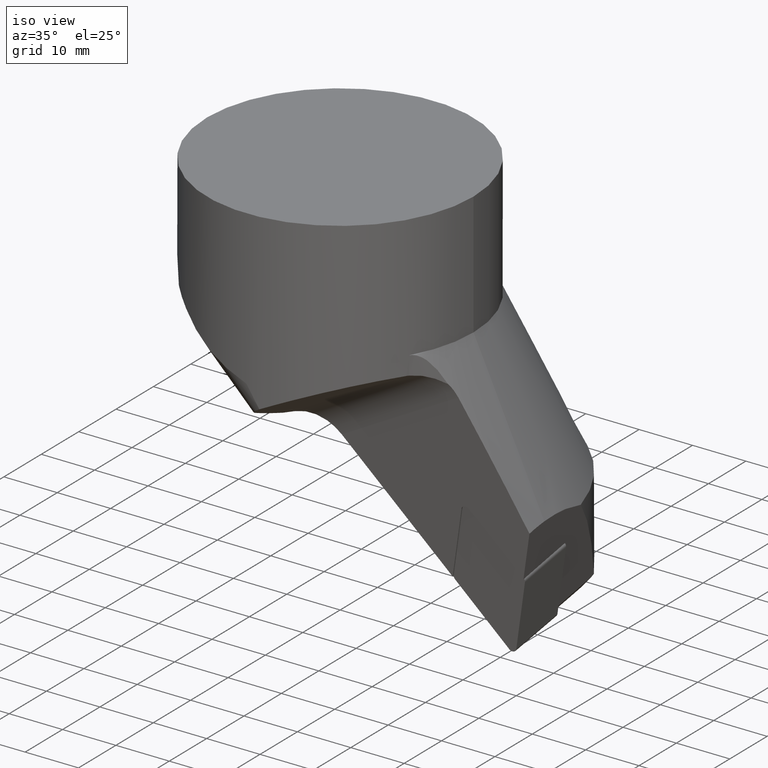
[diagram: clean part render]
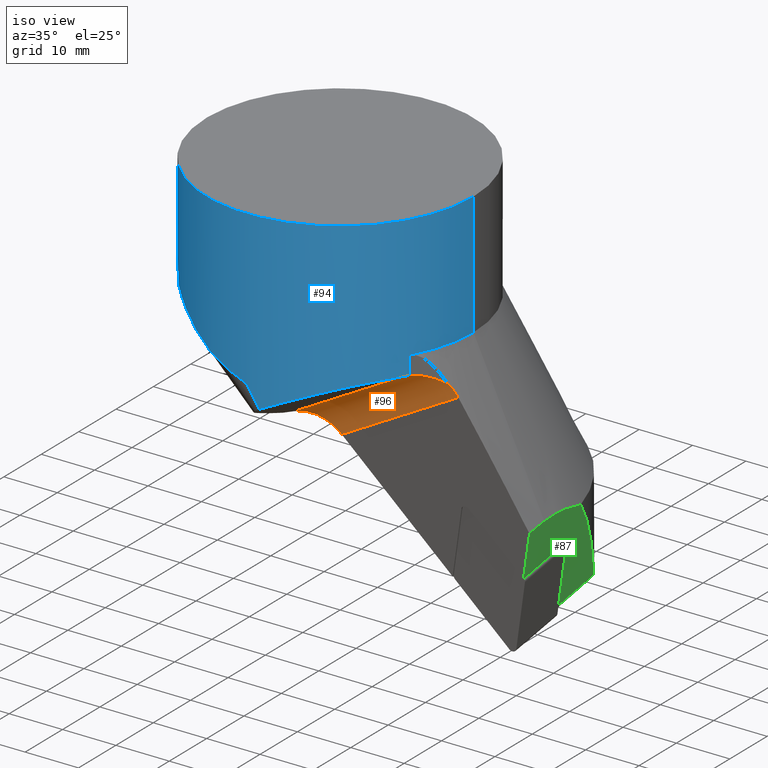
[diagram: same view with three faces highlighted in distinct colors, each labeled with its STEP entity id]
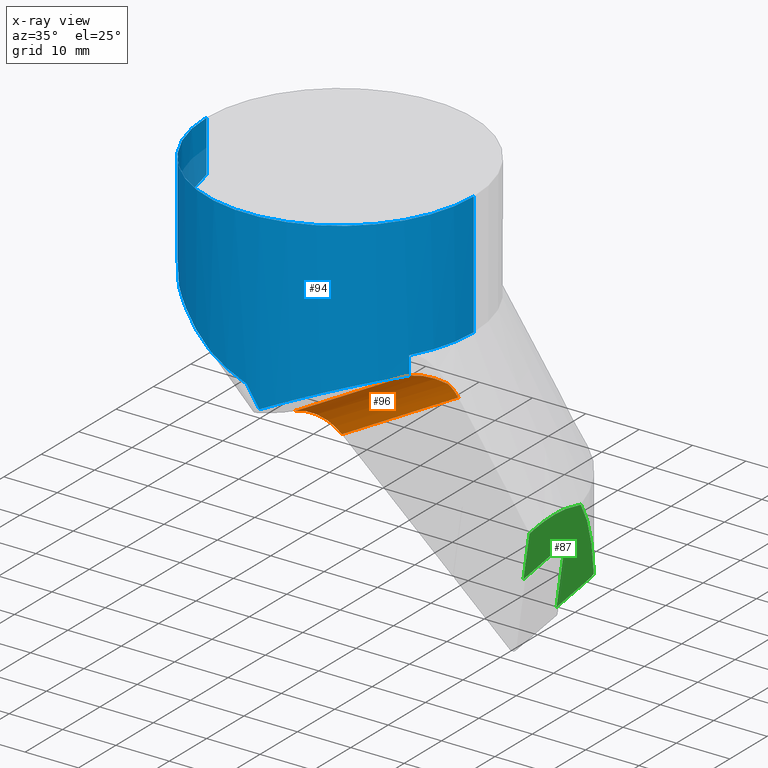
[diagram: x-ray of the same camera — body ghosted, the three highlighted faces saturated]
A machine part, iso view with three faces highlighted in distinct colors.
The next image is the same camera in x-ray (body ghosted, the three faces saturated) — at least one of them is partly hidden behind the body in this view.
Their STEP definitions:

[orange] entity #96 — the highlighted cylindrical surface (partial cylindrical patch) has radius 8 mm, axis along (-0.8663, 0.0776, -0.4935).
#96=ADVANCED_FACE('',(#148),#149,.F.);
#148=FACE_OUTER_BOUND('',#208,.T.);
#149=CYLINDRICAL_SURFACE('',#209,8.00000000000002);
#208=EDGE_LOOP('',(#412,#413,#414,#415,#416,#417));
#209=AXIS2_PLACEMENT_3D('',#418,#419,#420);
#412=ORIENTED_EDGE('',*,*,#527,.T.);
#413=ORIENTED_EDGE('',*,*,#555,.T.);
#414=ORIENTED_EDGE('',*,*,#551,.T.);
#415=ORIENTED_EDGE('',*,*,#556,.F.);
#416=ORIENTED_EDGE('',*,*,#537,.T.);
#417=ORIENTED_EDGE('',*,*,#557,.T.);
#418=CARTESIAN_POINT('',(23.7622692307713,-15.1402344104098,-33.8700730139728));
#419=DIRECTION('',(-0.866278708929212,0.0776257556945035,-0.493493100771221));
#420=DIRECTION('',(0.419616961756508,0.649107543236308,-0.634492712897447));
#527=EDGE_CURVE('',#643,#641,#644,.T.);
#537=EDGE_CURVE('',#660,#658,#661,.T.);
#551=EDGE_CURVE('',#684,#682,#685,.T.);
#555=EDGE_CURVE('',#641,#684,#690,.T.);
#556=EDGE_CURVE('',#660,#682,#691,.T.);
#557=EDGE_CURVE('',#658,#643,#692,.T.);
#641=VERTEX_POINT('',#853);
#643=VERTEX_POINT('',#866);
#644=B_SPLINE_CURVE_WITH_KNOTS('',3,(#867,#868,#869,#870,#871,#872,#873,#874),.UNSPECIFIED.,.F.,.F.,(4,2,2,4),(1.99357125253975,2.78534058154978,4.17801087232467,4.60069371737758),.UNSPECIFIED.);
#658=VERTEX_POINT('',#915);
#660=VERTEX_POINT('',#918);
#661=ELLIPSE('',#919,8.16797308076912,8.0);
#682=VERTEX_POINT('',#966);
#684=VERTEX_POINT('',#968);
#685=CIRCLE('',#969,6.16633100412016);
#690=B_SPLINE_CURVE_WITH_KNOTS('',3,(#996,#997,#998,#999,#1000,#1001,#1002,#1003,#1004,#1005,#1006,#1007),.UNSPECIFIED.,.F.,.F.,(4,2,2,2,2,4),(4.34603372209536,4.96071841316098,5.85285589566756,7.63662561550819,9.42039533534881,10.4865132481081),.UNSPECIFIED.);
#691=LINE('',#1008,#1009);
#692=LINE('',#1010,#1011);
#853=CARTESIAN_POINT('',(26.1108421119977,-8.4247807174747,-28.2247578916033));
#866=CARTESIAN_POINT('',(27.4547974824096,-7.57753475465468,-30.4656903169751));
#867=CARTESIAN_POINT('',(27.4547974824096,-7.57753475465468,-30.4656903169751));
#868=CARTESIAN_POINT('',(27.3251094417547,-7.6178795138613,-30.2206159807268));
#869=CARTESIAN_POINT('',(27.1923809799312,-7.67276543759421,-29.9781385762328));
#870=CARTESIAN_POINT('',(26.8207479171187,-7.86310809701971,-29.3242014864113));
#871=CARTESIAN_POINT('',(26.5773027261767,-8.02869321513341,-28.9236532081432));
#872=CARTESIAN_POINT('',(26.2590656621385,-8.29234228681221,-28.4409484963064));
#873=CARTESIAN_POINT('',(26.1849018831783,-8.35706273432858,-28.3313138968294));
#874=CARTESIAN_POINT('',(26.1108421119977,-8.4247807174747,-28.2247578916033));
#915=CARTESIAN_POINT('',(4.15598289399387,-5.48976776861457,-43.7383289458792));
#918=CARTESIAN_POINT('',(-0.745218798532441,-10.9540725261121,-39.0207886607072));
#919=AXIS2_PLACEMENT_3D('',#1117,#1118,#1119);
#966=CARTESIAN_POINT('',(21.3919321041843,-12.9377448131417,-26.4099151293403));
#968=CARTESIAN_POINT('',(21.6506350946111,-12.5,-26.4377996389401));
#969=AXIS2_PLACEMENT_3D('',#1149,#1150,#1151);
#996=CARTESIAN_POINT('',(26.1108421119977,-8.4247807174747,-28.2247578916033));
#997=CARTESIAN_POINT('',(25.9289765582159,-8.50894880790927,-28.1273818498521));
#998=CARTESIAN_POINT('',(25.7486761880857,-8.59908631195301,-28.0341675172989));
#999=CARTESIAN_POINT('',(25.3166585814445,-8.83154979107002,-27.8170089391383));
#1000=CARTESIAN_POINT('',(25.0694789343241,-8.97917533441311,-27.69820773742));
#1001=CARTESIAN_POINT('',(24.3736624233109,-9.43423900910255,-27.3751516242361));
#1002=CARTESIAN_POINT('',(23.9106964370092,-9.79310674932917,-27.1763155173989));
#1003=CARTESIAN_POINT('',(23.036625217395,-10.6120573006724,-26.8346512119303));
#1004=CARTESIAN_POINT('',(22.6255075512824,-11.0721540054011,-26.6918881254002));
#1005=CARTESIAN_POINT('',(22.03971709958,-11.8675692265399,-26.5231880287013));
#1006=CARTESIAN_POINT('',(21.836046292374,-12.1788583851825,-26.4732219135646));
#1007=CARTESIAN_POINT('',(21.6506350946111,-12.5,-26.4377996389401));
#1008=CARTESIAN_POINT('',(-0.745218798532441,-10.9540725261121,-39.0207886607072));
#1009=VECTOR('',#1156,25.5543056461355);
#1010=CARTESIAN_POINT('',(4.15598289399387,-5.48976776861457,-43.7383289458792));
#1011=VECTOR('',#1157,26.895287103633);
#1117=CARTESIAN_POINT('',(4.18129563867103,-13.3856168067985,-45.0247686961849));
#1118=DIRECTION('',(-0.747674819359016,0.104449876194447,-0.65579919781853));
#1119=DIRECTION('',(0.664057492248446,0.122304835725287,-0.737610448778293));
#1149=CARTESIAN_POINT('',(20.0517757963097,-12.2302700935833,-32.3871300864941));
#1150=DIRECTION('',(0.827664451915456,-0.504768527928607,-0.245316710087746));
#1151=DIRECTION('',(0.259288594341278,-0.0437423657984762,0.964808805038012));
#1156=DIRECTION('',(0.866278708929213,-0.077625755694504,0.49349310077122));
#1157=DIRECTION('',(0.866278708929212,-0.077625755694502,0.493493100771221));

[blue] entity #94 — the highlighted cylindrical surface (partial cylindrical patch) has radius 25 mm, axis along (-0, -0, 1).
#94=ADVANCED_FACE('',(#144),#145,.T.);
#144=FACE_OUTER_BOUND('',#204,.T.);
#145=CYLINDRICAL_SURFACE('',#205,25.0);
#204=EDGE_LOOP('',(#389,#390,#391,#392,#393,#394,#395,#396,#397,#398,#399));
#205=AXIS2_PLACEMENT_3D('',#400,#401,#402);
#389=ORIENTED_EDGE('',*,*,#529,.T.);
#390=ORIENTED_EDGE('',*,*,#546,.T.);
#391=ORIENTED_EDGE('',*,*,#532,.T.);
#392=ORIENTED_EDGE('',*,*,#540,.F.);
#393=ORIENTED_EDGE('',*,*,#547,.F.);
#394=ORIENTED_EDGE('',*,*,#548,.F.);
#395=ORIENTED_EDGE('',*,*,#549,.F.);
#396=ORIENTED_EDGE('',*,*,#550,.F.);
#397=ORIENTED_EDGE('',*,*,#551,.F.);
#398=ORIENTED_EDGE('',*,*,#552,.F.);
#399=ORIENTED_EDGE('',*,*,#525,.F.);
#400=CARTESIAN_POINT('',(-1.11022302462516E-015,1.77635683940025E-014,-26.0787791435518));
#401=DIRECTION('',(-0.0,-0.0,1.0));
#402=DIRECTION('',(-6.21724893790088E-016,1.0,0.0));
#525=EDGE_CURVE('',#637,#639,#640,.T.);
#529=EDGE_CURVE('',#637,#646,#647,.T.);
#532=EDGE_CURVE('',#652,#650,#653,.T.);
#540=EDGE_CURVE('',#664,#650,#666,.T.);
#546=EDGE_CURVE('',#646,#652,#675,.T.);
#547=EDGE_CURVE('',#676,#664,#677,.T.);
#548=EDGE_CURVE('',#678,#676,#679,.T.);
#549=EDGE_CURVE('',#680,#678,#681,.T.);
#550=EDGE_CURVE('',#682,#680,#683,.T.);
#551=EDGE_CURVE('',#684,#682,#685,.T.);
#552=EDGE_CURVE('',#639,#684,#686,.T.);
#637=VERTEX_POINT('',#848);
#639=VERTEX_POINT('',#851);
#640=CIRCLE('',#852,25.0);
#646=VERTEX_POINT('',#876);
#647=LINE('',#877,#878);
#650=VERTEX_POINT('',#881);
#652=VERTEX_POINT('',#883);
#653=LINE('',#884,#885);
#664=VERTEX_POINT('',#923);
#666=ELLIPSE('',#925,38.1214250995746,25.0);
#675=CIRCLE('',#935,25.0);
#676=VERTEX_POINT('',#936);
#677=B_SPLINE_CURVE_WITH_KNOTS('',3,(#937,#938,#939,#940,#941,#942,#943,#944,#945,#946,#947,#948),.UNSPECIFIED.,.F.,.F.,(4,2,2,2,2,4),(59.575412048818,59.7168087763301,62.6469278976111,65.5770470188922,68.5071661401733,68.6459225531929),.UNSPECIFIED.);
#678=VERTEX_POINT('',#949);
#679=B_SPLINE_CURVE_WITH_KNOTS('',3,(#950,#951,#952,#953,#954,#955,#956,#957,#958,#959,#960,#961,#962,#963),.UNSPECIFIED.,.F.,.F.,(4,2,2,2,2,2,4),(8.29895309466273E-014,2.15070872064106,4.30141744128212,6.45212616192318,8.60283488256424,10.7535436032053,12.3080953979299),.UNSPECIFIED.);
#680=VERTEX_POINT('',#964);
#681=CIRCLE('',#965,91.0170571207383);
#682=VERTEX_POINT('',#966);
#683=ELLIPSE('',#967,29.6690004900927,25.0);
#684=VERTEX_POINT('',#968);
#685=CIRCLE('',#969,6.16633100412016);
#686=LINE('',#970,#971);
#848=CARTESIAN_POINT('',(25.0000000000001,5.370216E-015,-23.0));
#851=CARTESIAN_POINT('',(21.6506350946111,-12.5,-22.9999999999999));
#852=AXIS2_PLACEMENT_3D('',#1098,#1099,#1100);
#876=CARTESIAN_POINT('',(25.0,5.370216E-015,0.0));
#877=CARTESIAN_POINT('',(25.0000000000001,5.370216E-015,-23.0));
#878=VECTOR('',#1104,23.0);
#881=CARTESIAN_POINT('',(-25.0,-4.557372E-016,-9.6233134324562));
#883=CARTESIAN_POINT('',(-25.0,-1.406057E-014,-1.136868E-013));
#884=CARTESIAN_POINT('',(-25.0,-1.406057E-014,-1.136868E-013));
#885=VECTOR('',#1111,9.62331343245609);
#923=CARTESIAN_POINT('',(-18.2283062811975,-17.1093205627475,-20.0687231177633));
#925=AXIS2_PLACEMENT_3D('',#1124,#1125,#1126);
#935=AXIS2_PLACEMENT_3D('',#1140,#1141,#1142);
#936=CARTESIAN_POINT('',(-11.4530711822711,-22.2222222222223,-23.7450152961981));
#937=CARTESIAN_POINT('',(-11.4530711822711,-22.2222222222223,-23.7450152961981));
#938=CARTESIAN_POINT('',(-11.4912536104722,-22.2025434491578,-23.7206404085781));
#939=CARTESIAN_POINT('',(-11.5294131283249,-22.1827519350107,-23.6963446807184));
#940=CARTESIAN_POINT('',(-12.3578181923216,-21.7503789845984,-23.170303449822));
#941=CARTESIAN_POINT('',(-13.137781829134,-21.2892885577255,-22.7028199747018));
#942=CARTESIAN_POINT('',(-14.6570559728239,-20.2732786339537,-21.8401377266629));
#943=CARTESIAN_POINT('',(-15.3964907513262,-19.7182403650805,-21.4448156284099));
#944=CARTESIAN_POINT('',(-16.8157854324828,-18.5226966404115,-20.7252667522724));
#945=CARTESIAN_POINT('',(-17.4956164203488,-17.8821876823785,-20.4009887608274));
#946=CARTESIAN_POINT('',(-18.1676579745447,-17.1737635066628,-20.0961290343795));
#947=CARTESIAN_POINT('',(-18.1980032835952,-17.1416054404261,-20.0823989175732));
#948=CARTESIAN_POINT('',(-18.2283062811975,-17.1093205627475,-20.0687231177633));
#949=CARTESIAN_POINT('',(1.350031E-013,-25.0,-28.8637785612519));
#950=CARTESIAN_POINT('',(1.207923E-013,-25.0,-28.8637785612519));
#951=CARTESIAN_POINT('',(-0.67289204818001,-25.0,-28.6164608114048));
#952=CARTESIAN_POINT('',(-1.35919642380671,-24.9726787978702,-28.3642815487412));
#953=CARTESIAN_POINT('',(-2.74318462171552,-24.858741709249,-27.8466906579445));
#954=CARTESIAN_POINT('',(-3.44085816805148,-24.7721205777085,-27.5812527079105));
#955=CARTESIAN_POINT('',(-4.83203458203651,-24.5387225051829,-27.0325203250765));
#956=CARTESIAN_POINT('',(-5.5255956217681,-24.3919336225876,-26.7491732644659));
#957=CARTESIAN_POINT('',(-6.89361580675267,-24.0411458530528,-26.1595895966907));
#958=CARTESIAN_POINT('',(-7.56806417181195,-23.8371520256875,-25.8533249661456));
#959=CARTESIAN_POINT('',(-8.88390300031495,-23.3786586331083,-25.213289091689));
#960=CARTESIAN_POINT('',(-9.52590598265664,-23.1239495889089,-24.8791892000879));
#961=CARTESIAN_POINT('',(-10.5937422621136,-22.6497884394792,-24.276236004799));
#962=CARTESIAN_POINT('',(-11.030190598092,-22.4401698866714,-24.0149736828617));
#963=CARTESIAN_POINT('',(-11.4530711822711,-22.2222222222223,-23.7450152961981));
#964=CARTESIAN_POINT('',(2.29017089198561,-24.8948813470861,-32.5962646739483));
#965=AXIS2_PLACEMENT_3D('',#1143,#1144,#1145);
#966=CARTESIAN_POINT('',(21.3919321041843,-12.9377448131417,-26.4099151293403));
#967=AXIS2_PLACEMENT_3D('',#1146,#1147,#1148);
#968=CARTESIAN_POINT('',(21.6506350946111,-12.5,-26.4377996389401));
#969=AXIS2_PLACEMENT_3D('',#1149,#1150,#1151);
#970=CARTESIAN_POINT('',(21.6506350946111,-12.5,-22.9999999999999));
#971=VECTOR('',#1152,3.4377996389402);
#1098=CARTESIAN_POINT('',(9.237056E-014,-1.995618E-015,-23.0));
#1099=DIRECTION('',(0.0,0.0,-1.0));
#1100=DIRECTION('',(1.0,0.0,0.0));
#1104=DIRECTION('',(0.0,0.0,1.0));
#1111=DIRECTION('',(0.0,0.0,-1.0));
#1124=CARTESIAN_POINT('',(1.705303E-013,-7.657059E-015,-38.1257430574889));
#1125=DIRECTION('',(-0.747674819359016,0.104449876194447,-0.65579919781853));
#1126=DIRECTION('',(0.649492084443676,-0.090733787005926,-0.754935369512234));
#1140=CARTESIAN_POINT('',(-2.842171E-014,6.613093E-015,0.0));
#1141=DIRECTION('',(0.0,0.0,-1.0));
#1142=DIRECTION('',(1.0,0.0,0.0));
#1143=CARTESIAN_POINT('',(3.44060725055552,65.927720234469,-26.7622073325491));
#1144=DIRECTION('',(-0.852063948318724,0.0442957663325051,-0.521560076175816));
#1145=DIRECTION('',(-0.012639788573298,-0.997863526405547,-0.0640985055544051));
#1146=CARTESIAN_POINT('',(1.918465E-013,-9.250148E-015,-42.3820153731793));
#1147=DIRECTION('',(0.454084151620467,-0.289450672272155,-0.842630340996761));
#1148=DIRECTION('',(0.710548662846426,-0.452930998382175,0.538492440459178));
#1149=CARTESIAN_POINT('',(20.0517757963097,-12.2302700935833,-32.3871300864941));
#1150=DIRECTION('',(0.827664451915456,-0.504768527928607,-0.245316710087746));
#1151=DIRECTION('',(0.259288594341278,-0.0437423657984762,0.964808805038012));
#1152=DIRECTION('',(0.0,0.0,-1.0));

[green] entity #87 — the highlighted planar face has unit normal (-0.9728, -0.0403, 0.2281).
#87=ADVANCED_FACE('',(#130),#131,.F.);
#130=FACE_OUTER_BOUND('',#190,.T.);
#131=PLANE('',#191);
#190=EDGE_LOOP('',(#321,#322,#323,#324,#325,#326,#327,#328,#329));
#191=AXIS2_PLACEMENT_3D('',#330,#331,#332);
#321=ORIENTED_EDGE('',*,*,#514,.T.);
#322=ORIENTED_EDGE('',*,*,#489,.T.);
#323=ORIENTED_EDGE('',*,*,#483,.T.);
#324=ORIENTED_EDGE('',*,*,#516,.T.);
#325=ORIENTED_EDGE('',*,*,#517,.F.);
#326=ORIENTED_EDGE('',*,*,#518,.T.);
#327=ORIENTED_EDGE('',*,*,#519,.T.);
#328=ORIENTED_EDGE('',*,*,#520,.T.);
#329=ORIENTED_EDGE('',*,*,#521,.F.);
#330=CARTESIAN_POINT('',(35.4310017147911,8.21989750612639,-62.0830437623117));
#331=DIRECTION('',(-0.972812710737959,-0.0402762684875891,0.228064140152238));
#332=DIRECTION('',(0.228249345803035,0.0,0.973602709600013));
#483=EDGE_CURVE('',#569,#567,#570,.T.);
#489=EDGE_CURVE('',#580,#569,#581,.T.);
#514=EDGE_CURVE('',#620,#580,#621,.T.);
#516=EDGE_CURVE('',#567,#623,#624,.T.);
#517=EDGE_CURVE('',#625,#623,#626,.T.);
#518=EDGE_CURVE('',#625,#627,#628,.T.);
#519=EDGE_CURVE('',#627,#629,#630,.T.);
#520=EDGE_CURVE('',#629,#631,#632,.T.);
#521=EDGE_CURVE('',#620,#631,#633,.T.);
#567=VERTEX_POINT('',#704);
#569=VERTEX_POINT('',#706);
#570=LINE('',#707,#708);
#580=VERTEX_POINT('',#720);
#581=(B_SPLINE_CURVE(2,(#722,#723,#724),.UNSPECIFIED.,.F.,.F.)B_SPLINE_CURVE_WITH_KNOTS((3,3),(0.207051754619328,1.30763958276126),.UNSPECIFIED.)RATIONAL_B_SPLINE_CURVE((0.999379420469271,0.998037359058196,0.999962111995269))BOUNDED_CURVE()REPRESENTATION_ITEM('')GEOMETRIC_REPRESENTATION_ITEM()CURVE());
#620=VERTEX_POINT('',#801);
#621=(B_SPLINE_CURVE(2,(#803,#804,#805),.UNSPECIFIED.,.F.,.F.)B_SPLINE_CURVE_WITH_KNOTS((3,3),(0.189469977062396,0.207051754619328),.UNSPECIFIED.)RATIONAL_B_SPLINE_CURVE((0.999423132738123,0.999400859762524,0.999379420469271))BOUNDED_CURVE()REPRESENTATION_ITEM('')GEOMETRIC_REPRESENTATION_ITEM()CURVE());
#623=VERTEX_POINT('',#813);
#624=LINE('',#814,#815);
#625=VERTEX_POINT('',#816);
#626=ELLIPSE('',#817,58.8825390931947,50.0);
#627=VERTEX_POINT('',#818);
#628=ELLIPSE('',#819,171.004525191755,39.0);
#629=VERTEX_POINT('',#820);
#630=(B_SPLINE_CURVE(2,(#822,#823,#824),.UNSPECIFIED.,.F.,.F.)B_SPLINE_CURVE_WITH_KNOTS((3,3),(27.8004387168901,41.3080411589913),.UNSPECIFIED.)RATIONAL_B_SPLINE_CURVE((1.05516988666824,1.0612506906455,1.0602162157745))BOUNDED_CURVE()REPRESENTATION_ITEM('')GEOMETRIC_REPRESENTATION_ITEM()CURVE());
#631=VERTEX_POINT('',#831);
#632=CIRCLE('',#832,27.0290968232824);
#633=LINE('',#833,#834);
#704=CARTESIAN_POINT('',(33.1575679076936,10.5512412878216,-71.3687099571979));
#706=CARTESIAN_POINT('',(36.1593231959554,8.51401943269903,-58.9244300162752));
#707=CARTESIAN_POINT('',(35.3860949175504,9.03879157316146,-62.1299775145465));
#708=VECTOR('',#1032,10.0);
#720=CARTESIAN_POINT('',(36.1766484163558,-2.43946103453863,-60.7849203382828));
#722=CARTESIAN_POINT('',(36.1766484163558,-2.43946103453863,-60.7849203382828));
#723=CARTESIAN_POINT('',(36.1692343768733,2.75907545998699,-59.8984803235807));
#724=CARTESIAN_POINT('',(36.1593231959554,8.51401943269903,-58.9244300162752));
#801=CARTESIAN_POINT('',(36.1768843200522,-2.60517572886211,-60.8131794034834));
#803=CARTESIAN_POINT('',(36.1768843200522,-2.60517572886211,-60.8131794034834));
#804=CARTESIAN_POINT('',(36.1767666932875,-2.52239382002245,-60.7990618066866));
#805=CARTESIAN_POINT('',(36.1766484163558,-2.43946103453863,-60.7849203382828));
#813=CARTESIAN_POINT('',(33.1275550474895,19.9132054852782,-69.8434018072029));
#814=CARTESIAN_POINT('',(33.1933136391479,-0.598987507796585,-73.1853730524151));
#815=VECTOR('',#1085,20.7827610625092);
#816=CARTESIAN_POINT('',(33.1775130227416,20.5000641371151,-69.5266653404116));
#817=AXIS2_PLACEMENT_3D('',#1086,#1087,#1088);
#818=CARTESIAN_POINT('',(37.4437380108118,10.9071757929221,-53.0230968871337));
#819=AXIS2_PLACEMENT_3D('',#1089,#1090,#1091);
#820=CARTESIAN_POINT('',(38.2648931573789,1.847551E-014,-51.4466551758182));
#822=CARTESIAN_POINT('',(37.4437380108118,10.9071757929221,-53.0230968871337));
#823=CARTESIAN_POINT('',(38.1150629975248,5.43834855921753,-51.1253433611101));
#824=CARTESIAN_POINT('',(38.2648931573789,1.847551E-014,-51.4466551758182));
#831=CARTESIAN_POINT('',(38.3051472914144,-4.03624492786045,-51.9877536188453));
#832=AXIS2_PLACEMENT_3D('',#1092,#1093,#1094);
#833=CARTESIAN_POINT('',(33.1933136391479,-0.598987507796585,-73.1853730524151));
#834=VECTOR('',#1095,22.0745249441678);
#1032=DIRECTION('',(-0.2315760366963,0.157165297559464,-0.960037295354237));
#1085=DIRECTION('',(-0.00316409313760689,0.986981129763239,0.160804968847037));
#1086=CARTESIAN_POINT('',(46.11345046092,-1.6426E-014,-17.9684577672147));
#1087=DIRECTION('',(-0.972812710737959,-0.04027626848759,0.228064140152237));
#1088=DIRECTION('',(-0.225228224039344,-0.064754737604355,-0.972151773672133));
#1089=CARTESIAN_POINT('',(1.080025E-012,-7.373478E-014,-214.666416132885));
#1090=DIRECTION('',(0.972812710737959,0.04027626848759,-0.228064140152237));
#1091=DIRECTION('',(0.22786892698618,0.00943420041902199,0.973646110235449));
#1092=CARTESIAN_POINT('',(32.0487407587285,1.40477002178689,-77.7137095524516));
#1093=DIRECTION('',(0.972812710738031,0.040276268487549,-0.228064140151938));
#1094=DIRECTION('',(0.229980026313567,-0.051972510623323,0.971806588594829));
#1095=DIRECTION('',(0.23157162680491,-0.155711501323702,0.960275226179686));